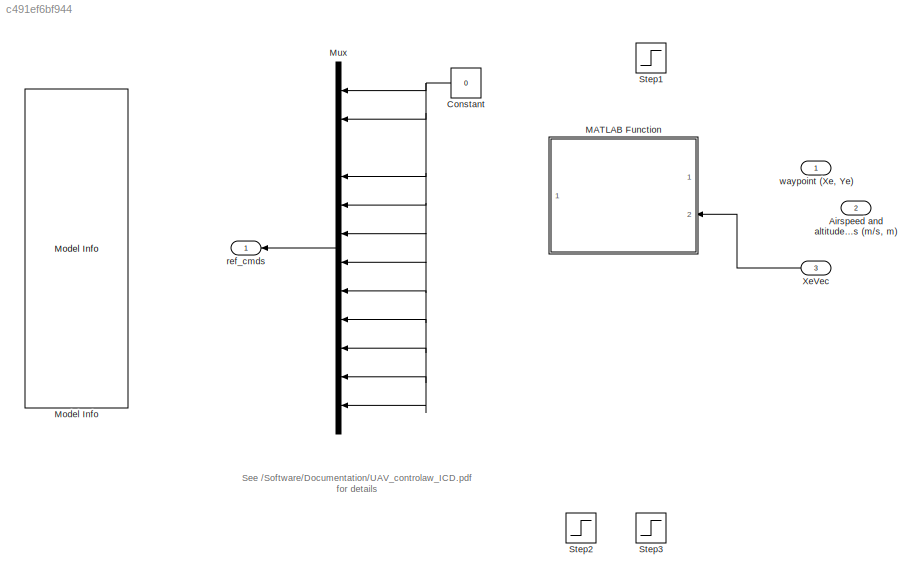
MODEL slx_c491ef6bf944
KIND model
BLOCK [Inport] Airspeed and altitude commands (m//s, m)
  IconDisplay = Port number
  Port = 2
BLOCK [Constant] Constant
  Value = 0
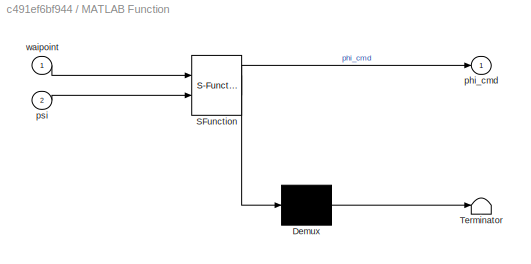
BLOCK [SubSystem] MATLAB Function
  ErrorFcn = Stateflow.Translate.translate
  FunctionWithSeparateData = off
  MaskHideContents = off
  MinAlgLoopOccurrences = off
  Opaque = off
  PermitHierarchicalResolution = ExplicitOnly
  Ports = [2, 1]
  PropExecContextOutsideSubsystem = off
  RTWSystemCode = Auto
  RequestExecContextInheritance = off
  SFBlockType = MATLAB Function
  TreatAsAtomicUnit = on
BLOCK [Demux] MATLAB Function/ Demux 
  Outputs = 1
  Ports = [1, 1]
BLOCK [S-Function] MATLAB Function/ SFunction 
  EnableBusSupport = on
  FunctionName = sf_sfun
  PortCounts = [2 2]
  Ports = [2, 2]
  Tag = Stateflow S-Function guidanceLaw 2
BLOCK [Terminator] MATLAB Function/ Terminator 
BLOCK [Outport] MATLAB Function/phi_cmd
  IconDisplay = Port number
BLOCK [Inport] MATLAB Function/psi
  IconDisplay = Port number
  Port = 2
BLOCK [Inport] MATLAB Function/waipoint
  IconDisplay = Port number
BLOCK [Reference] Model Info  REF=simulink/Model-Wide
Utilities/Model Info
  BlockCM = None
  DisplayStringWithTags = Ref Cmd Port Info\n\n1. phi_cmd\n2. theta_cmd\n3. psi_cmd\n4. p_cmd\n5. q_cmd\n6. r_cmd\n7. V_s_cmd\n8. h_cmd\n9. gndtrk_cmd\n10. aoa_cmd\n11. aos_cmd\n12. gamma_cmd
  Frame = on
  HorizontalTextAlignment = Center
  InitialBlockCM = None
  LeftAlignmentValue = 0.5
  MaskDisplayString = Ref Cmd Port Info\n\n1. phi_cmd\n2. theta_cmd\n3. psi_cmd\n4. p_cmd\n5. q_cmd\n6. r_cmd\n7. V_s_cmd\n8. h_cmd\n9. gndtrk_cmd\n10. aoa_cmd\n11. aos_cmd\n12. gamma_cmd
  Ports = []
  SourceBlock = simulink/Model-Wide\nUtilities/Model Info
  SourceBlockDiagram = guidanceLaw
  SourceType = CMBlock
  TagMaxNumber = 20
BLOCK [Mux] Mux
  DisplayOption = bar
  Inputs = 12
  Ports = [12, 1]
BLOCK [Step] Step1
  After = 90*pi/180
  SampleTime = SampleTime
  Time = 20
BLOCK [Step] Step2
  After = 10
  SampleTime = SampleTime
  Time = 20
BLOCK [Step] Step3
  After = 0
  SampleTime = SampleTime
  Time = 35
BLOCK [Inport] XeVec
  IconDisplay = Port number
  Port = 3
BLOCK [Outport] ref_cmds
  IconDisplay = Port number
BLOCK [Inport] waypoint (Xe, Ye)
  IconDisplay = Port number
ANNOTATION (root): See /Software/Documentation/UAV_controlaw_ICD.pdf for details
NET Constant:1 -> Mux:1, Mux:10, Mux:11, Mux:12, Mux:2, Mux:4, Mux:5, Mux:6, Mux:7, Mux:8, Mux:9
LINE Mux:1 -> ref_cmds:1
LINE XeVec:1 -> MATLAB Function:2
note: NET lines group one-source signal fan-out (src -> all destinations, sorted); 1:1 wires keep LINE
